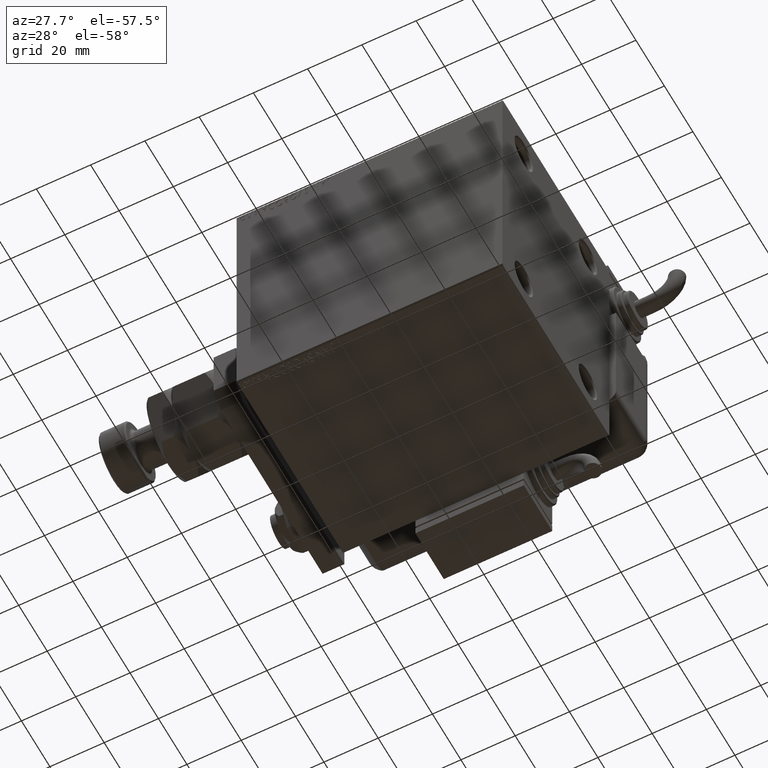
[diagram: clean part render]
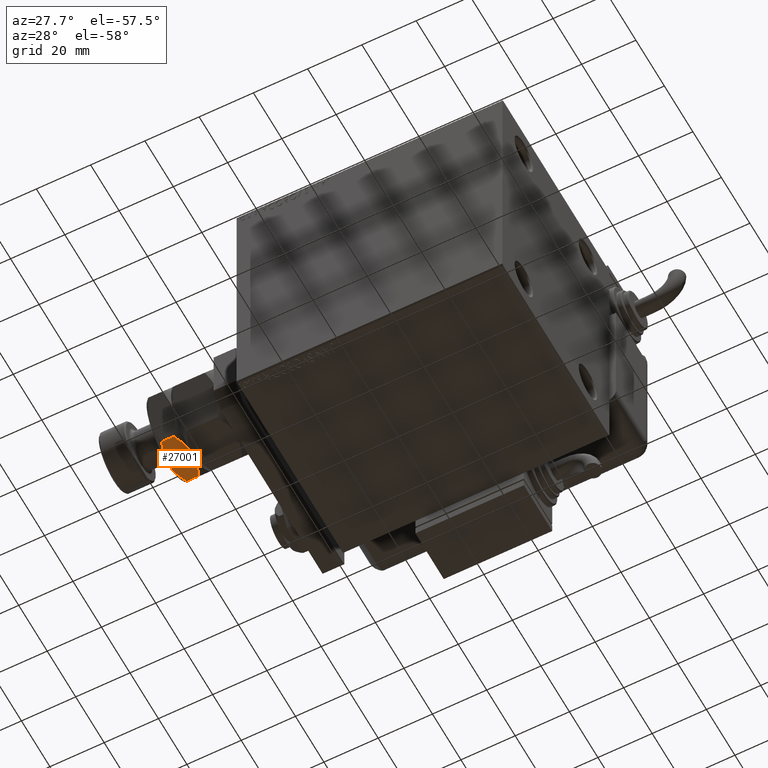
[diagram: same view with one face highlighted and labeled with its STEP entity id]
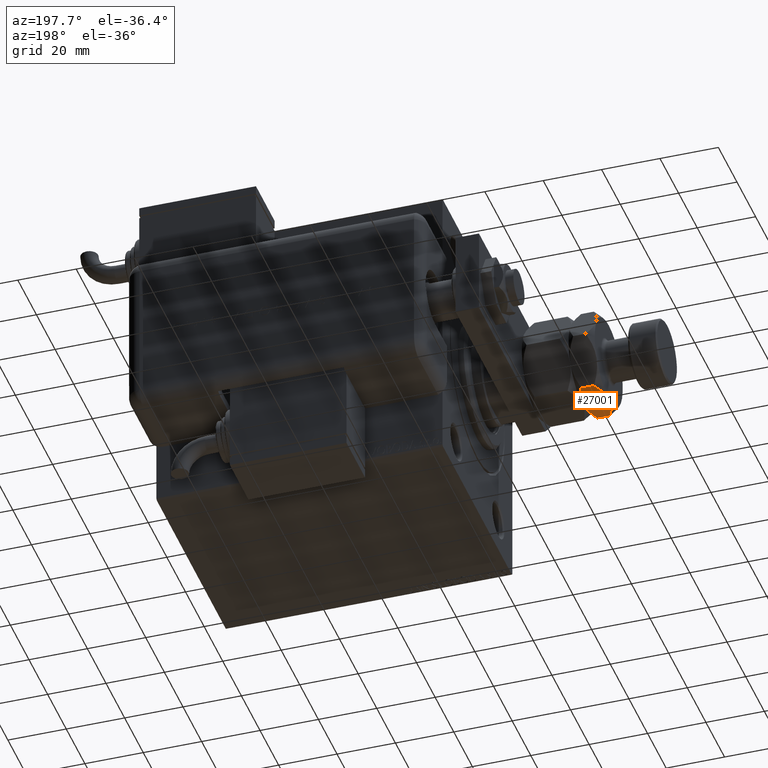
[diagram: same view with one face highlighted and labeled with its STEP entity id]
A machine part, auxiliary view. The second image highlights one B-rep face of the part: STEP entity #27001.
A second angle (auxiliary view) of the same face is appended — the face is thin or edge-on in the first view.
In plain terms, the highlighted planar face has unit normal (0, 0, 1).
Its self-contained STEP definition (entity closure, byte-faithful):
#562 = B_SPLINE_CURVE_WITH_KNOTS ( 'NONE', 3,
 ( #48306, #5384, #42379, #23576, #698, #57403, #33602, #10067, #28896, #47385, #13539, #9450 ),
 .UNSPECIFIED., .F., .F.,
 ( 4, 2, 2, 2, 2, 4 ),
 ( 0.03191542946226437472, 0.03304303448889991252, 0.03417063951553545031, 0.03642584956880652591, 0.03868105962207760845, 0.04093626967534868405 ),
 .UNSPECIFIED. ) ;
#698 = CARTESIAN_POINT ( 'NONE',  ( -14.99999999999999467, -1.891887532498633062, 24.88562366702208450 ) ) ;
#3566 = CARTESIAN_POINT ( 'NONE',  ( -14.99999999999999822, 1.524122972781247753, 25.00000000000001066 ) ) ;
#4025 = ORIENTED_EDGE ( 'NONE', *, *, #22420, .F. ) ;
#4197 = CARTESIAN_POINT ( 'NONE',  ( -14.99999999999999467, 7.301375305910569047, 17.67016602839480299 ) ) ;
#4605 = VECTOR ( 'NONE', #12100, 1000.000000000000000 ) ;
#4763 = B_SPLINE_CURVE_WITH_KNOTS ( 'NONE', 3,
 ( #27383, #22684, #17970, #42723, #13263, #47109, #56811, #8252, #3566, #32395 ),
 .UNSPECIFIED., .F., .F.,
 ( 4, 2, 2, 2, 4 ),
 ( 0.02288126756189531180, 0.02513980803698757927, 0.02626907827453370953, 0.02739834851207984326, 0.03191542946226437472 ),
 .UNSPECIFIED. ) ;
#4881 = DIRECTION ( 'NONE',  ( -0.000000000000000000, 0.000000000000000000, -1.000000000000000000 ) ) ;
#5384 = CARTESIAN_POINT ( 'NONE',  ( -14.99999999999999645, -0.3804688789667622362, 25.00000000000000355 ) ) ;
#5524 = EDGE_CURVE ( 'NONE', #42212, #32478, #50599, .T. ) ;
#5979 = AXIS2_PLACEMENT_3D ( 'NONE', #43117, #52196, #4881 ) ;
#7305 = CARTESIAN_POINT ( 'NONE',  ( -14.99999999999999822, -3.004852722955706934, 16.23490203621983952 ) ) ;
#7667 = CARTESIAN_POINT ( 'NONE',  ( -14.99999999999999822, 3.737365789271272831, 16.44310156405335732 ) ) ;
#7971 = CARTESIAN_POINT ( 'NONE',  ( -15.00000000000000000, 3.006083412830566015, 16.28061096559729748 ) ) ;
#8184 = ORIENTED_EDGE ( 'NONE', *, *, #31968, .F. ) ;
#8252 = CARTESIAN_POINT ( 'NONE',  ( -14.99999999999999822, 3.004852722955709599, 24.76509796378016404 ) ) ;
#8573 = CARTESIAN_POINT ( 'NONE',  ( -14.99999999999999645, -3.004629197474316485E-15, 16.00000000000000000 ) ) ;
#9450 = CARTESIAN_POINT ( 'NONE',  ( -14.99999999999999645, -8.660254037844383745, 22.67949192431123961 ) ) ;
#9478 = ORIENTED_EDGE ( 'NONE', *, *, #5524, .F. ) ;
#10047 = EDGE_CURVE ( 'NONE', #37871, #42212, #13016, .T. ) ;
#10067 = CARTESIAN_POINT ( 'NONE',  ( -14.99999999999999467, -5.180699559534203580, 24.14562739175687867 ) ) ;
#11377 = CARTESIAN_POINT ( 'NONE',  ( -14.99999999999999645, -3.004629197474316485E-15, 16.00000000000000000 ) ) ;
#12100 = DIRECTION ( 'NONE',  ( -0.000000000000000000, -0.000000000000000000, -1.000000000000000000 ) ) ;
#13016 = LINE ( 'NONE', #35960, #4605 ) ;
#13146 = CARTESIAN_POINT ( 'NONE',  ( -14.99999999999999645, -8.660254037844383745, 22.67949192431123961 ) ) ;
#13263 = CARTESIAN_POINT ( 'NONE',  ( -14.99999999999999645, 5.891098461327062275, 23.88813662624437484 ) ) ;
#13363 = CARTESIAN_POINT ( 'NONE',  ( -14.99999999999999645, 8.660254037844383745, 18.32050807568876394 ) ) ;
#13539 = CARTESIAN_POINT ( 'NONE',  ( -14.99999999999999822, -7.988323794068004524, 23.01545704619943677 ) ) ;
#14613 = CARTESIAN_POINT ( 'NONE',  ( -14.99999999999999822, -6.248143622294142219, 17.24609782017708426 ) ) ;
#15318 = CARTESIAN_POINT ( 'NONE',  ( -14.99999999999999645, -3.004629197474316485E-15, 16.00000000000000000 ) ) ;
#16409 = CARTESIAN_POINT ( 'NONE',  ( -14.99999999999999822, -5.174827754835034099, 16.86398255753356423 ) ) ;
#17970 = CARTESIAN_POINT ( 'NONE',  ( -14.99999999999999289, 7.303107243978796959, 23.32903847857429014 ) ) ;
#18614 = EDGE_CURVE ( 'NONE', #25636, #57833, #25262, .T. ) ;
#18982 = FACE_OUTER_BOUND ( 'NONE', #26910, .T. ) ;
#19902 = PLANE ( 'NONE',  #5979 ) ;
#21420 = CARTESIAN_POINT ( 'NONE',  ( -14.99999999999999822, -1.524122972781244867, 16.00000000000000000 ) ) ;
#22072 = ORIENTED_EDGE ( 'NONE', *, *, #10047, .F. ) ;
#22247 = CARTESIAN_POINT ( 'NONE',  ( -14.99999999999999645, 0.000000000000000000, 25.00000000000000000 ) ) ;
#22420 = EDGE_CURVE ( 'NONE', #32478, #57833, #35548, .T. ) ;
#22684 = CARTESIAN_POINT ( 'NONE',  ( -14.99999999999999467, 7.988341278889598662, 23.01544830378863082 ) ) ;
#23576 = CARTESIAN_POINT ( 'NONE',  ( -14.99999999999999822, -1.517610682399676447, 24.92812055908709468 ) ) ;
#25262 = LINE ( 'NONE', #44373, #51781 ) ;
#25499 = CARTESIAN_POINT ( 'NONE',  ( -14.99999999999999467, -7.988341278889593333, 17.98455169621137273 ) ) ;
#25636 = VERTEX_POINT ( 'NONE', #27530 ) ;
#26792 = CARTESIAN_POINT ( 'NONE',  ( -14.99999999999999645, 5.892768039091677679, 17.10307638990227019 ) ) ;
#26910 = EDGE_LOOP ( 'NONE', ( #9478, #22072, #8184, #40294, #56754, #4025 ) ) ;
#27001 = ADVANCED_FACE ( 'NONE', ( #18982 ), #19902, .F. ) ;
#27094 = CARTESIAN_POINT ( 'NONE',  ( -14.99999999999999467, 1.517610682399678224, 16.07187944091290888 ) ) ;
#27383 = CARTESIAN_POINT ( 'NONE',  ( -14.99999999999999645, 8.660254037844383745, 22.67949192431123961 ) ) ;
#27530 = CARTESIAN_POINT ( 'NONE',  ( -14.99999999999999645, 8.660254037844383745, 22.67949192431123961 ) ) ;
#28896 = CARTESIAN_POINT ( 'NONE',  ( -14.99999999999999645, -5.892768039091675902, 23.89692361009773336 ) ) ;
#31489 = CARTESIAN_POINT ( 'NONE',  ( -14.99999999999999645, 1.891887532498635061, 16.11437633297791550 ) ) ;
#31968 = EDGE_CURVE ( 'NONE', #36291, #37871, #562, .T. ) ;
#32395 = CARTESIAN_POINT ( 'NONE',  ( -14.99999999999999645, 0.000000000000000000, 25.00000000000000000 ) ) ;
#32478 = VERTEX_POINT ( 'NONE', #15318 ) ;
#33602 = CARTESIAN_POINT ( 'NONE',  ( -14.99999999999999289, -3.737365789271269279, 24.55689843594664268 ) ) ;
#35548 = B_SPLINE_CURVE_WITH_KNOTS ( 'NONE', 3,
 ( #8573, #36215, #51210, #27094, #31489, #7971, #7667, #46205, #26792, #4197, #45908, #56218 ),
 .UNSPECIFIED., .F., .F.,
 ( 4, 2, 2, 2, 2, 4 ),
 ( 0.03191542946226437472, 0.03304303448889991252, 0.03417063951553545031, 0.03642584956880652591, 0.03868105962207760845, 0.04093626967534868405 ),
 .UNSPECIFIED. ) ;
#35960 = CARTESIAN_POINT ( 'NONE',  ( -14.99999999999999645, -8.660254037844383745, 25.00000000000000000 ) ) ;
#36215 = CARTESIAN_POINT ( 'NONE',  ( -14.99999999999999645, 0.3804688789667648452, 16.00000000000000000 ) ) ;
#36291 = VERTEX_POINT ( 'NONE', #22247 ) ;
#37871 = VERTEX_POINT ( 'NONE', #13146 ) ;
#39925 = CARTESIAN_POINT ( 'NONE',  ( -14.99999999999999289, -7.303107243978792518, 17.67096152142570631 ) ) ;
#40294 = ORIENTED_EDGE ( 'NONE', *, *, #55306, .F. ) ;
#42212 = VERTEX_POINT ( 'NONE', #52050 ) ;
#42379 = CARTESIAN_POINT ( 'NONE',  ( -14.99999999999999467, -0.7628644205843042592, 24.98532818133300282 ) ) ;
#42723 = CARTESIAN_POINT ( 'NONE',  ( -14.99999999999999822, 6.248143622294144883, 23.75390217982291929 ) ) ;
#43117 = CARTESIAN_POINT ( 'NONE',  ( -14.99999999999999645, 8.660254037844383745, 25.00000000000000000 ) ) ;
#44300 = CARTESIAN_POINT ( 'NONE',  ( -14.99999999999999645, -8.660254037844383745, 18.32050807568876394 ) ) ;
#44373 = CARTESIAN_POINT ( 'NONE',  ( -14.99999999999999645, 8.660254037844383745, 25.00000000000000000 ) ) ;
#45908 = CARTESIAN_POINT ( 'NONE',  ( -14.99999999999999822, 7.988323794068011630, 17.98454295380058454 ) ) ;
#46205 = CARTESIAN_POINT ( 'NONE',  ( -15.00000000000000000, 5.180699559534208021, 16.85437260824312489 ) ) ;
#47109 = CARTESIAN_POINT ( 'NONE',  ( -14.99999999999999822, 5.174827754835040317, 24.13601744246643577 ) ) ;
#47385 = CARTESIAN_POINT ( 'NONE',  ( -14.99999999999999467, -7.301375305910566382, 23.32983397160519701 ) ) ;
#47833 = DIRECTION ( 'NONE',  ( -0.000000000000000000, -0.000000000000000000, -1.000000000000000000 ) ) ;
#48306 = CARTESIAN_POINT ( 'NONE',  ( -14.99999999999999645, 0.000000000000000000, 25.00000000000000000 ) ) ;
#50242 = CARTESIAN_POINT ( 'NONE',  ( -14.99999999999999822, -4.814853579356890734, 16.74999630955690577 ) ) ;
#50599 = B_SPLINE_CURVE_WITH_KNOTS ( 'NONE', 3,
 ( #44300, #25499, #39925, #14613, #54939, #16409, #50242, #7305, #21420, #11377 ),
 .UNSPECIFIED., .F., .F.,
 ( 4, 2, 2, 2, 4 ),
 ( 0.02288126756189531874, 0.02513980803698758273, 0.02626907827453371647, 0.02739834851207984673, 0.03191542946226437472 ),
 .UNSPECIFIED. ) ;
#51210 = CARTESIAN_POINT ( 'NONE',  ( -14.99999999999999645, 0.7628644205843065906, 16.01467181866700784 ) ) ;
#51781 = VECTOR ( 'NONE', #47833, 1000.000000000000000 ) ;
#52050 = CARTESIAN_POINT ( 'NONE',  ( -14.99999999999999645, -8.660254037844383745, 18.32050807568876394 ) ) ;
#52196 = DIRECTION ( 'NONE',  ( 1.000000000000000000, 0.000000000000000000, -0.000000000000000000 ) ) ;
#54939 = CARTESIAN_POINT ( 'NONE',  ( -14.99999999999999645, -5.891098461327054281, 17.11186337375562871 ) ) ;
#55306 = EDGE_CURVE ( 'NONE', #25636, #36291, #4763, .T. ) ;
#56218 = CARTESIAN_POINT ( 'NONE',  ( -14.99999999999999645, 8.660254037844383745, 18.32050807568876394 ) ) ;
#56754 = ORIENTED_EDGE ( 'NONE', *, *, #18614, .T. ) ;
#56811 = CARTESIAN_POINT ( 'NONE',  ( -14.99999999999999822, 4.814853579356895175, 24.25000369044310844 ) ) ;
#57403 = CARTESIAN_POINT ( 'NONE',  ( -14.99999999999999467, -3.006083412830562018, 24.71938903440270607 ) ) ;
#57833 = VERTEX_POINT ( 'NONE', #13363 ) ;